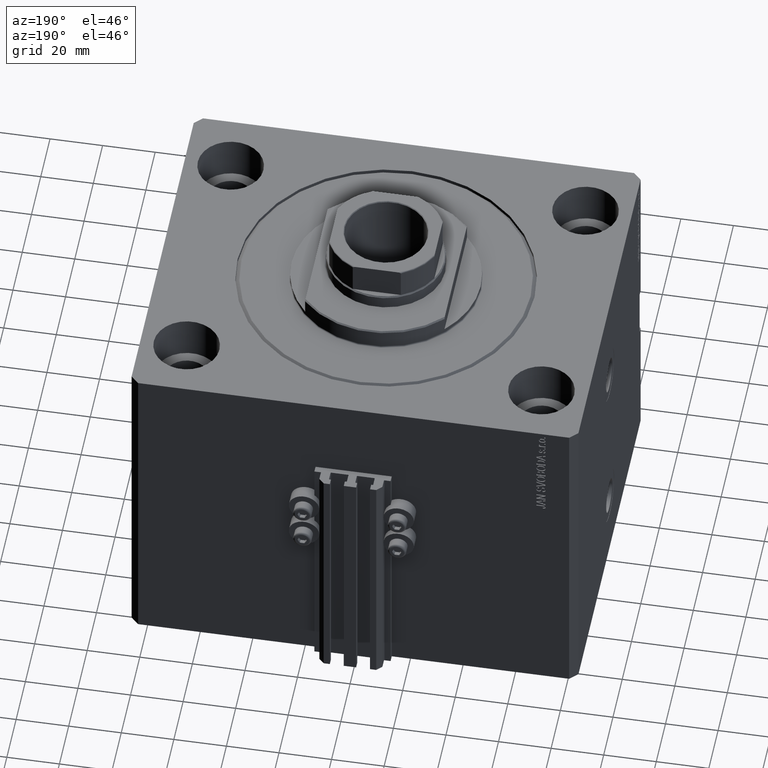
[diagram: clean part render]
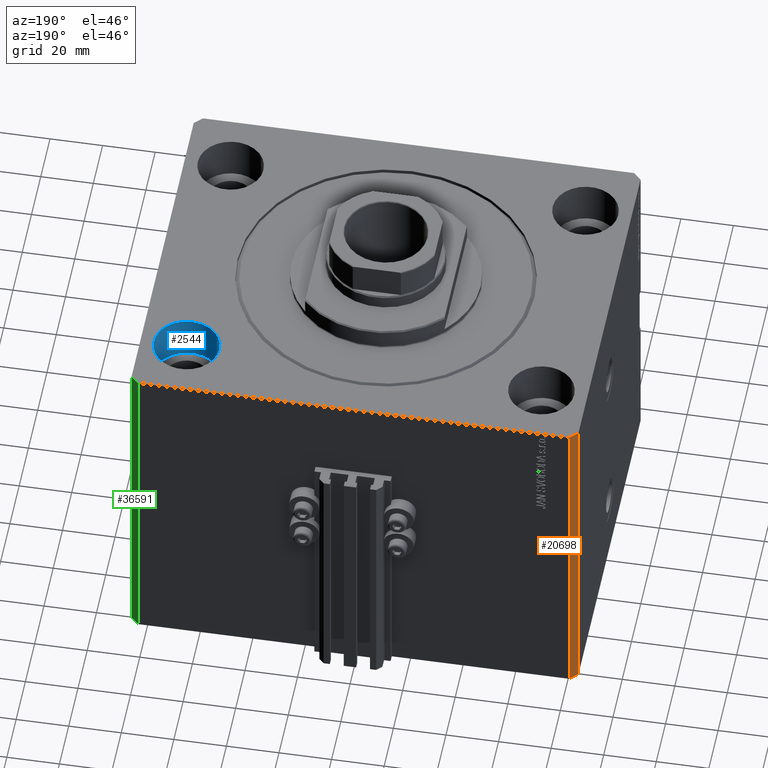
[diagram: same view with three faces highlighted in distinct colors, each labeled with its STEP entity id]
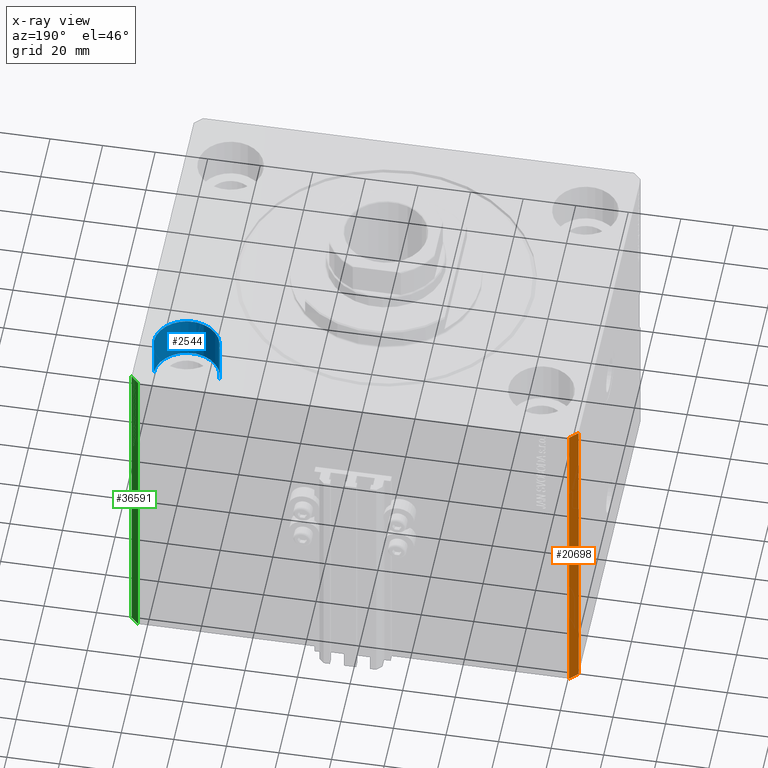
[diagram: x-ray of the same camera — body ghosted, the three highlighted faces saturated]
A machine part, auxiliary view with three faces highlighted in distinct colors.
The next image is the same camera in x-ray (body ghosted, the three faces saturated) — at least one of them is partly hidden behind the body in this view.
Their STEP definitions:

[orange] entity #20698 — the highlighted planar face has unit normal (-0.7071, 0.7071, 0).
#1332 = DIRECTION ( 'NONE',  ( -0.7071067811865475727, 0.7071067811865475727, 0.000000000000000000 ) ) ;
#1463 = AXIS2_PLACEMENT_3D ( 'NONE', #47778, #1332, #5246 ) ;
#3480 = CARTESIAN_POINT ( 'NONE',  ( -82.00000000000000000, 70.00000000000000000, -130.0000000000000000 ) ) ;
#3963 = DIRECTION ( 'NONE',  ( 0.000000000000000000, 0.000000000000000000, 1.000000000000000000 ) ) ;
#4637 = VERTEX_POINT ( 'NONE', #39288 ) ;
#5246 = DIRECTION ( 'NONE',  ( -0.7071067811865474617, -0.7071067811865474617, 0.000000000000000000 ) ) ;
#7600 = CARTESIAN_POINT ( 'NONE',  ( -85.00000000000000000, 67.00000000000000000, -130.0000000000000000 ) ) ;
#7947 = EDGE_CURVE ( 'NONE', #4637, #39588, #42875, .T. ) ;
#10634 = VECTOR ( 'NONE', #3963, 1000.000000000000000 ) ;
#10770 = CARTESIAN_POINT ( 'NONE',  ( -82.00000000000000000, 70.00000000000000000, -130.0000000000000000 ) ) ;
#11031 = LINE ( 'NONE', #7600, #23911 ) ;
#12553 = EDGE_LOOP ( 'NONE', ( #18510, #36991, #19550, #34642 ) ) ;
#13215 = VERTEX_POINT ( 'NONE', #36085 ) ;
#13514 = EDGE_CURVE ( 'NONE', #16663, #39588, #11031, .T. ) ;
#14100 = EDGE_CURVE ( 'NONE', #13215, #4637, #22340, .T. ) ;
#15647 = LINE ( 'NONE', #10770, #32609 ) ;
#16520 = FACE_OUTER_BOUND ( 'NONE', #12553, .T. ) ;
#16663 = VERTEX_POINT ( 'NONE', #22184 ) ;
#18510 = ORIENTED_EDGE ( 'NONE', *, *, #7947, .F. ) ;
#19550 = ORIENTED_EDGE ( 'NONE', *, *, #44657, .T. ) ;
#20053 = CARTESIAN_POINT ( 'NONE',  ( -85.00000000000000000, 67.00000000000000000, 0.000000000000000000 ) ) ;
#20698 = ADVANCED_FACE ( 'NONE', ( #16520 ), #40188, .T. ) ;
#22184 = CARTESIAN_POINT ( 'NONE',  ( -85.00000000000000000, 67.00000000000000000, -130.0000000000000000 ) ) ;
#22340 = LINE ( 'NONE', #3480, #10634 ) ;
#22389 = CARTESIAN_POINT ( 'NONE',  ( -82.00000000000000000, 70.00000000000000000, 0.000000000000000000 ) ) ;
#22549 = DIRECTION ( 'NONE',  ( 0.000000000000000000, 0.000000000000000000, 1.000000000000000000 ) ) ;
#23911 = VECTOR ( 'NONE', #22549, 1000.000000000000000 ) ;
#32609 = VECTOR ( 'NONE', #40641, 1000.000000000000114 ) ;
#34642 = ORIENTED_EDGE ( 'NONE', *, *, #13514, .T. ) ;
#36085 = CARTESIAN_POINT ( 'NONE',  ( -82.00000000000000000, 70.00000000000000000, -130.0000000000000000 ) ) ;
#36991 = ORIENTED_EDGE ( 'NONE', *, *, #14100, .F. ) ;
#37566 = DIRECTION ( 'NONE',  ( -0.7071067811865474617, -0.7071067811865474617, 0.000000000000000000 ) ) ;
#39288 = CARTESIAN_POINT ( 'NONE',  ( -82.00000000000000000, 70.00000000000000000, 0.000000000000000000 ) ) ;
#39588 = VERTEX_POINT ( 'NONE', #20053 ) ;
#40188 = PLANE ( 'NONE',  #1463 ) ;
#40641 = DIRECTION ( 'NONE',  ( -0.7071067811865474617, -0.7071067811865474617, 0.000000000000000000 ) ) ;
#42585 = VECTOR ( 'NONE', #37566, 1000.000000000000114 ) ;
#42875 = LINE ( 'NONE', #22389, #42585 ) ;
#44657 = EDGE_CURVE ( 'NONE', #13215, #16663, #15647, .T. ) ;
#47778 = CARTESIAN_POINT ( 'NONE',  ( -82.00000000000000000, 70.00000000000000000, -130.0000000000000000 ) ) ;

[blue] entity #2544 — the highlighted cylindrical surface (edge-blend (fillet) strip) has radius 12.5 mm, axis along (0, 0, 1).
#2544 = ADVANCED_FACE ( 'NONE', ( #9943 ), #39808, .F. ) ;
#2582 = CARTESIAN_POINT ( 'NONE',  ( 67.50000000000000000, 47.50000000000001421, -17.00000000000000000 ) ) ;
#6013 = DIRECTION ( 'NONE',  ( 1.000000000000000000, 0.000000000000000000, 0.000000000000000000 ) ) ;
#6364 = VERTEX_POINT ( 'NONE', #40390 ) ;
#9166 = CARTESIAN_POINT ( 'NONE',  ( 67.50000000000000000, 47.50000000000001421, -17.00000000000000000 ) ) ;
#9943 = FACE_OUTER_BOUND ( 'NONE', #19704, .T. ) ;
#10208 = VECTOR ( 'NONE', #48256, 1000.000000000000000 ) ;
#11688 = VERTEX_POINT ( 'NONE', #48053 ) ;
#12005 = VERTEX_POINT ( 'NONE', #21742 ) ;
#12988 = VECTOR ( 'NONE', #20004, 1000.000000000000000 ) ;
#13858 = EDGE_CURVE ( 'NONE', #6364, #12005, #23682, .T. ) ;
#16264 = DIRECTION ( 'NONE',  ( 1.000000000000000000, 0.000000000000000000, 0.000000000000000000 ) ) ;
#16383 = DIRECTION ( 'NONE',  ( 1.000000000000000000, 0.000000000000000000, 0.000000000000000000 ) ) ;
#16803 = DIRECTION ( 'NONE',  ( -0.000000000000000000, -0.000000000000000000, 1.000000000000000000 ) ) ;
#19213 = AXIS2_PLACEMENT_3D ( 'NONE', #9166, #34861, #16264 ) ;
#19704 = EDGE_LOOP ( 'NONE', ( #47845, #46091, #21033, #43281 ) ) ;
#20004 = DIRECTION ( 'NONE',  ( -0.000000000000000000, -0.000000000000000000, 1.000000000000000000 ) ) ;
#21033 = ORIENTED_EDGE ( 'NONE', *, *, #33167, .T. ) ;
#21742 = CARTESIAN_POINT ( 'NONE',  ( 55.00000000000000711, 47.50000000000001421, 0.000000000000000000 ) ) ;
#23481 = DIRECTION ( 'NONE',  ( 0.000000000000000000, 0.000000000000000000, 1.000000000000000000 ) ) ;
#23682 = LINE ( 'NONE', #27595, #12988 ) ;
#24856 = EDGE_CURVE ( 'NONE', #11688, #43213, #37468, .T. ) ;
#27595 = CARTESIAN_POINT ( 'NONE',  ( 55.00000000000000711, 47.50000000000001421, -17.00000000000000000 ) ) ;
#30582 = CARTESIAN_POINT ( 'NONE',  ( 67.50000000000000000, 47.50000000000001421, 0.000000000000000000 ) ) ;
#33167 = EDGE_CURVE ( 'NONE', #12005, #43213, #38441, .T. ) ;
#33307 = CARTESIAN_POINT ( 'NONE',  ( 80.00000000000000000, 47.50000000000001421, -17.00000000000000000 ) ) ;
#34861 = DIRECTION ( 'NONE',  ( 0.000000000000000000, 0.000000000000000000, 1.000000000000000000 ) ) ;
#37436 = CARTESIAN_POINT ( 'NONE',  ( 80.00000000000000000, 47.50000000000001421, 0.000000000000000000 ) ) ;
#37468 = LINE ( 'NONE', #33307, #10208 ) ;
#37729 = AXIS2_PLACEMENT_3D ( 'NONE', #2582, #16803, #6013 ) ;
#38441 = CIRCLE ( 'NONE', #46277, 12.49999999999999645 ) ;
#39808 = CYLINDRICAL_SURFACE ( 'NONE', #37729, 12.49999999999999645 ) ;
#40329 = CIRCLE ( 'NONE', #19213, 12.49999999999999645 ) ;
#40390 = CARTESIAN_POINT ( 'NONE',  ( 55.00000000000000711, 47.50000000000001421, -17.00000000000000000 ) ) ;
#43213 = VERTEX_POINT ( 'NONE', #37436 ) ;
#43281 = ORIENTED_EDGE ( 'NONE', *, *, #24856, .F. ) ;
#46091 = ORIENTED_EDGE ( 'NONE', *, *, #13858, .T. ) ;
#46277 = AXIS2_PLACEMENT_3D ( 'NONE', #30582, #23481, #16383 ) ;
#46279 = EDGE_CURVE ( 'NONE', #6364, #11688, #40329, .T. ) ;
#47845 = ORIENTED_EDGE ( 'NONE', *, *, #46279, .F. ) ;
#48053 = CARTESIAN_POINT ( 'NONE',  ( 80.00000000000000000, 47.50000000000001421, -17.00000000000000000 ) ) ;
#48256 = DIRECTION ( 'NONE',  ( -0.000000000000000000, -0.000000000000000000, 1.000000000000000000 ) ) ;

[green] entity #36591 — the highlighted planar face has unit normal (0.7071, 0.7071, 0).
#631 = CARTESIAN_POINT ( 'NONE',  ( 85.00000000000055422, 66.99999999999997158, -130.0000000000000000 ) ) ;
#915 = EDGE_CURVE ( 'NONE', #23503, #46445, #42378, .T. ) ;
#997 = AXIS2_PLACEMENT_3D ( 'NONE', #631, #7983, #4065 ) ;
#4065 = DIRECTION ( 'NONE',  ( -0.7071067811865344721, 0.7071067811865606734, 0.000000000000000000 ) ) ;
#4526 = EDGE_CURVE ( 'NONE', #16902, #46445, #34874, .T. ) ;
#4550 = PLANE ( 'NONE',  #997 ) ;
#5742 = EDGE_LOOP ( 'NONE', ( #16291, #27493, #17086, #6874 ) ) ;
#6874 = ORIENTED_EDGE ( 'NONE', *, *, #4526, .T. ) ;
#7983 = DIRECTION ( 'NONE',  ( 0.7071067811865606734, 0.7071067811865344721, -0.000000000000000000 ) ) ;
#12368 = CARTESIAN_POINT ( 'NONE',  ( 82.00000000000059686, 70.00000000000002842, -130.0000000000000000 ) ) ;
#13446 = CARTESIAN_POINT ( 'NONE',  ( 85.00000000000055422, 66.99999999999997158, -130.0000000000000000 ) ) ;
#15478 = EDGE_CURVE ( 'NONE', #45017, #23503, #46991, .T. ) ;
#16291 = ORIENTED_EDGE ( 'NONE', *, *, #915, .F. ) ;
#16902 = VERTEX_POINT ( 'NONE', #46922 ) ;
#17086 = ORIENTED_EDGE ( 'NONE', *, *, #30799, .T. ) ;
#18319 = DIRECTION ( 'NONE',  ( 0.000000000000000000, 0.000000000000000000, 1.000000000000000000 ) ) ;
#23503 = VERTEX_POINT ( 'NONE', #28715 ) ;
#27493 = ORIENTED_EDGE ( 'NONE', *, *, #15478, .F. ) ;
#27510 = VECTOR ( 'NONE', #45815, 1000.000000000000000 ) ;
#28715 = CARTESIAN_POINT ( 'NONE',  ( 85.00000000000055422, 66.99999999999997158, 0.000000000000000000 ) ) ;
#29688 = CARTESIAN_POINT ( 'NONE',  ( 85.00000000000055422, 66.99999999999997158, -130.0000000000000000 ) ) ;
#29785 = FACE_OUTER_BOUND ( 'NONE', #5742, .T. ) ;
#30799 = EDGE_CURVE ( 'NONE', #45017, #16902, #37530, .T. ) ;
#30994 = CARTESIAN_POINT ( 'NONE',  ( 85.00000000000055422, 66.99999999999997158, -130.0000000000000000 ) ) ;
#31416 = VECTOR ( 'NONE', #44866, 1000.000000000000000 ) ;
#34874 = LINE ( 'NONE', #12368, #44051 ) ;
#35349 = CARTESIAN_POINT ( 'NONE',  ( 82.00000000000059686, 70.00000000000002842, 0.000000000000000000 ) ) ;
#35697 = VECTOR ( 'NONE', #18319, 1000.000000000000000 ) ;
#36591 = ADVANCED_FACE ( 'NONE', ( #29785 ), #4550, .T. ) ;
#37530 = LINE ( 'NONE', #29688, #31416 ) ;
#38793 = DIRECTION ( 'NONE',  ( 0.000000000000000000, 0.000000000000000000, 1.000000000000000000 ) ) ;
#41895 = CARTESIAN_POINT ( 'NONE',  ( 85.00000000000055422, 66.99999999999997158, 0.000000000000000000 ) ) ;
#42378 = LINE ( 'NONE', #41895, #27510 ) ;
#44051 = VECTOR ( 'NONE', #38793, 1000.000000000000000 ) ;
#44866 = DIRECTION ( 'NONE',  ( -0.7071067811865344721, 0.7071067811865606734, 0.000000000000000000 ) ) ;
#45017 = VERTEX_POINT ( 'NONE', #30994 ) ;
#45815 = DIRECTION ( 'NONE',  ( -0.7071067811865344721, 0.7071067811865606734, 0.000000000000000000 ) ) ;
#46445 = VERTEX_POINT ( 'NONE', #35349 ) ;
#46922 = CARTESIAN_POINT ( 'NONE',  ( 82.00000000000059686, 70.00000000000002842, -130.0000000000000000 ) ) ;
#46991 = LINE ( 'NONE', #13446, #35697 ) ;